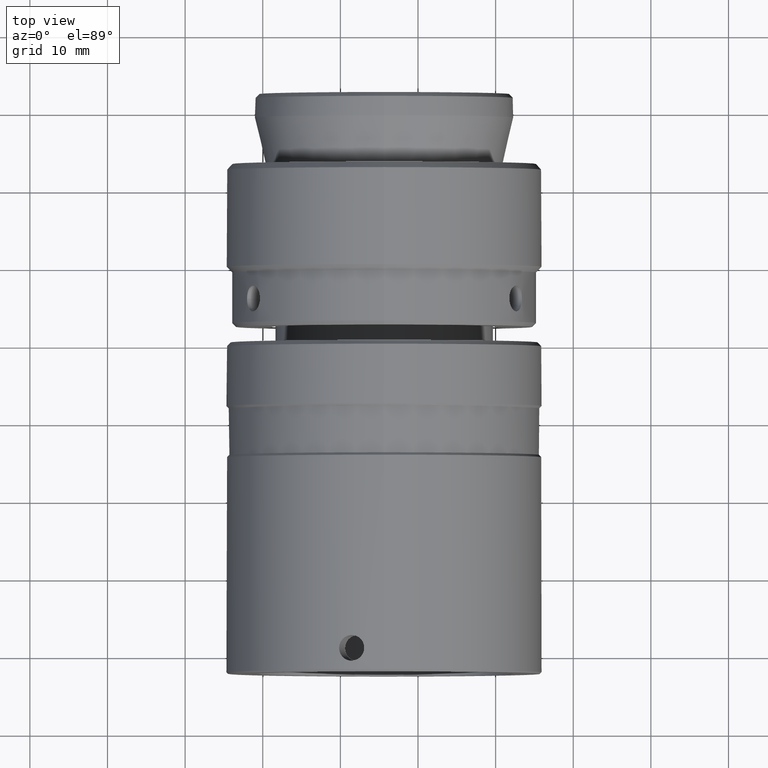
[diagram: clean part render]
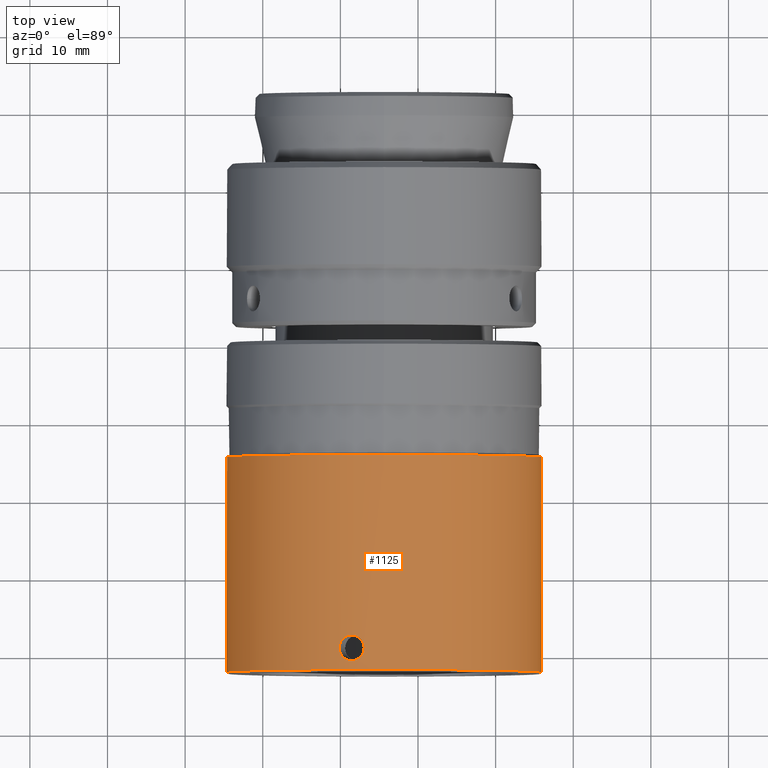
[diagram: same view with one face highlighted and labeled with its STEP entity id]
A machine part, top view. The second image highlights one B-rep face of the part: STEP entity #1125.
In plain terms, the highlighted cylindrical surface (bore or boss wall) has radius 20.32 mm, axis along (0, 1, 0).
Its self-contained STEP definition (entity closure, byte-faithful):
#13 = CARTESIAN_POINT ( 'NONE',  ( 30.17276815262395218, -7.777671463394519868, 30.14250767558814559 ) ) ;
#42 = B_SPLINE_CURVE_WITH_KNOTS ( 'NONE', 3,
 ( #62, #858, #403, #872, #1066, #1519, #50, #1363, #549, #1710, #697, #1531, #1699, #74, #896, #720, #2013, #561, #2026, #574, #415, #1426, #1886, #282, #2063, #1270, #764, #2079, #615, #291, #1905, #1756, #1601, #451, #1279, #431, #633, #933, #1416, #1581, #1101, #2053, #1747, #594, #1764, #1120, #271, #1434, #1736, #303, #2044, #138, #604, #1591 ),
 .UNSPECIFIED., .T., .F.,
 ( 4, 2, 2, 2, 2, 2, 2, 2, 2, 2, 2, 2, 2, 2, 2, 2, 2, 2, 2, 2, 2, 2, 2, 2, 2, 2, 4 ),
 ( 0.000000000000000000, 0.0003224790861775020650, 0.0006449581723550041300, 0.0009674372585325060865, 0.001289916344710008260, 0.001934874517065008487, 0.002579832689420009147, 0.002902311775597509261, 0.003224790861775009808, 0.003547269947952509921, 0.003869749034130010035, 0.004192228120307510582, 0.004514707206485011129, 0.005159665378840003550, 0.005482144465017503229, 0.005804623551195001174, 0.006127102637372499987, 0.006449581723549998799, 0.007094539895904975607, 0.007739498068259950680, 0.008061977154437448626, 0.008384456240614946571, 0.008706935326792444516, 0.009029414412969940726, 0.009351893499147438671, 0.009674372585324936616, 0.01031933075767993077 ),
 .UNSPECIFIED. ) ;
#44 = CIRCLE ( 'NONE', #763, 20.31999726070932866 ) ;
#50 = CARTESIAN_POINT ( 'NONE',  ( 64.46476807828025812, -10.17035141804004716, 35.67512944592265711 ) ) ;
#55 = EDGE_LOOP ( 'NONE', ( #304 ) ) ;
#62 = CARTESIAN_POINT ( 'NONE',  ( 64.38136610844961183, -9.343850822337914863, 35.47317472154978901 ) ) ;
#74 = CARTESIAN_POINT ( 'NONE',  ( 64.98989186124835271, -10.99392541025560455, 37.12225617421751878 ) ) ;
#81 = DIRECTION ( 'NONE',  ( 0.000000000000000000, 0.000000000000000000, 1.000000000000000000 ) ) ;
#90 = CARTESIAN_POINT ( 'NONE',  ( 42.50836092966532220, -8.099359879355038316, 63.40026753977316787 ) ) ;
#98 = CARTESIAN_POINT ( 'NONE',  ( 29.47599142158787089, -9.560111610636901958, 31.00727082283284730 ) ) ;
#104 = CARTESIAN_POINT ( 'NONE',  ( 30.81102393378900217, -10.94116224952707483, 29.42832089389640871 ) ) ;
#112 = CARTESIAN_POINT ( 'NONE',  ( 42.66078331235883780, -10.43453367284628541, 63.42343634198163471 ) ) ;
#121 = CARTESIAN_POINT ( 'NONE',  ( 30.59337664768484544, -10.99392541014729119, 29.66428234022789923 ) ) ;
#122 = DIRECTION ( 'NONE',  ( 0.000000000000000000, 1.000000000000000000, 0.000000000000000000 ) ) ;
#138 = CARTESIAN_POINT ( 'NONE',  ( 64.39817796728793553, -8.911318221872994272, 35.51299586238773998 ) ) ;
#145 = CARTESIAN_POINT ( 'NONE',  ( 40.63160066004505211, -10.77582708932067490, 63.01632193543282767 ) ) ;
#157 = CARTESIAN_POINT ( 'NONE',  ( 29.98210326777132195, -7.911875171770360815, 30.36964996032403974 ) ) ;
#169 = CARTESIAN_POINT ( 'NONE',  ( 29.57172477326774995, -8.611586583363671110, 30.88258179333340436 ) ) ;
#196 = VERTEX_POINT ( 'NONE', #1981 ) ;
#217 = EDGE_CURVE ( 'NONE', #1643, #1643, #589, .T. ) ;
#247 = CARTESIAN_POINT ( 'NONE',  ( 31.67477349074580673, -9.343850822337918416, 28.56087999588127957 ) ) ;
#258 = CARTESIAN_POINT ( 'NONE',  ( 31.55321765669110690, -10.07611746740642111, 28.67676249540956590 ) ) ;
#266 = CARTESIAN_POINT ( 'NONE',  ( 29.60269090440356976, -10.17035356768406906, 30.84261513460028326 ) ) ;
#271 = CARTESIAN_POINT ( 'NONE',  ( 64.59156809029080648, -8.099358757779075546, 35.99485465837855713 ) ) ;
#274 = CARTESIAN_POINT ( 'NONE',  ( 43.06524846346342628, -9.452898621871648643, 63.47906701953659336 ) ) ;
#282 = CARTESIAN_POINT ( 'NONE',  ( 65.35273054240822432, -10.17252157097867560, 38.39694081825582117 ) ) ;
#284 = CARTESIAN_POINT ( 'NONE',  ( 31.38105024726313985, -10.43443816394334611, 28.84416601769826372 ) ) ;
#289 = EDGE_CURVE ( 'NONE', #826, #826, #42, .T. ) ;
#291 = CARTESIAN_POINT ( 'NONE',  ( 65.39246668975619059, -8.916673573009688880, 38.55912422919892180 ) ) ;
#303 = CARTESIAN_POINT ( 'NONE',  ( 64.46525162878693038, -8.515177919218730906, 35.67632052976824752 ) ) ;
#304 = ORIENTED_EDGE ( 'NONE', *, *, #835, .T. ) ;
#306 = CARTESIAN_POINT ( 'NONE',  ( 40.91952815153747025, -10.91003042060479977, 63.08734495255330188 ) ) ;
#314 = CARTESIAN_POINT ( 'NONE',  ( 39.83656667520455841, -9.561939250330230067, 62.79670915248023988 ) ) ;
#319 = CARTESIAN_POINT ( 'NONE',  ( 30.81469453049522045, -7.737405162583292473, 29.42338898115467316 ) ) ;
#323 = CARTESIAN_POINT ( 'NONE',  ( 42.25297451907697877, -10.78565878854725746, 63.35961799748676526 ) ) ;
#330 = CARTESIAN_POINT ( 'NONE',  ( 30.37862570877632962, -7.704474632621606034, 29.90465740734287081 ) ) ;
#384 = ORIENTED_EDGE ( 'NONE', *, *, #217, .T. ) ;
#403 = CARTESIAN_POINT ( 'NONE',  ( 64.38552210586263413, -9.560108218285634507, 35.48307736998662421 ) ) ;
#408 = CARTESIAN_POINT ( 'NONE',  ( 29.52086202835918627, -9.875827327979646242, 30.94855246106299873 ) ) ;
#415 = CARTESIAN_POINT ( 'NONE',  ( 65.26692198138182732, -10.58834176532080917, 38.06519286596088847 ) ) ;
#418 = CARTESIAN_POINT ( 'NONE',  ( 31.51586578665143534, -10.17252372545710237, 28.71271326462845508 ) ) ;
#426 = CARTESIAN_POINT ( 'NONE',  ( 41.22527722167111364, -7.694001199302928029, 63.15877394867361261 ) ) ;
#431 = CARTESIAN_POINT ( 'NONE',  ( 65.24794715799454536, -8.024965903639319720, 37.99323730972241009 ) ) ;
#433 = CARTESIAN_POINT ( 'NONE',  ( 39.84685666706352691, -9.127593426390195219, 62.79978337239806763 ) ) ;
#443 = CARTESIAN_POINT ( 'NONE',  ( 41.54122365649764959, -7.693776234420239390, 63.22556554508834381 ) ) ;
#451 = CARTESIAN_POINT ( 'NONE',  ( 65.32361984110319497, -8.338035088271913864, 38.28186210775024989 ) ) ;
#455 = CARTESIAN_POINT ( 'NONE',  ( 41.86201609123797596, -10.95029660808248195, 63.28961959561253536 ) ) ;
#456 = FACE_BOUND ( 'NONE', #647, .T. ) ;
#465 = CARTESIAN_POINT ( 'NONE',  ( 40.22876118837648818, -10.43443816394334789, 62.90943793210966817 ) ) ;
#474 = CARTESIAN_POINT ( 'NONE',  ( 45.63870267272136516, 57.35366667322863066, 43.32268782812209196 ) ) ;
#509 = ORIENTED_EDGE ( 'NONE', *, *, #1375, .T. ) ;
#549 = CARTESIAN_POINT ( 'NONE',  ( 64.53542070400010289, -10.43453215128681855, 35.85126613041059329 ) ) ;
#561 = CARTESIAN_POINT ( 'NONE',  ( 65.17105645156759408, -10.82744587942392300, 37.71916792620475434 ) ) ;
#574 = CARTESIAN_POINT ( 'NONE',  ( 65.24521252397825322, -10.65648047791265896, 37.98461079755573166 ) ) ;
#579 = CARTESIAN_POINT ( 'NONE',  ( 41.95729909422033899, -7.777671463394520757, 63.30667009206011642 ) ) ;
#587 = CARTESIAN_POINT ( 'NONE',  ( 43.01287827206562042, -9.771028071666162163, 63.47232249524709147 ) ) ;
#589 = CIRCLE ( 'NONE', #1673, 20.31999726070932866 ) ;
#594 = CARTESIAN_POINT ( 'NONE',  ( 64.71818054825868671, -7.860255287726602980, 36.33084948584013318 ) ) ;
#597 = CARTESIAN_POINT ( 'NONE',  ( 43.06524921052407251, -9.125766581550822210, 63.47906711491714304 ) ) ;
#604 = CARTESIAN_POINT ( 'NONE',  ( 64.38136610844959762, -9.125762394345608541, 35.47317472154978901 ) ) ;
#607 = CARTESIAN_POINT ( 'NONE',  ( 30.23517581718590108, -10.95029660808248195, 30.06851542268035615 ) ) ;
#615 = CARTESIAN_POINT ( 'NONE',  ( 65.40228510236488546, -9.127590034038952638, 38.60002538534976679 ) ) ;
#625 = ORIENTED_EDGE ( 'NONE', *, *, #289, .T. ) ;
#633 = CARTESIAN_POINT ( 'NONE',  ( 65.19921985302299561, -7.902042856128588255, 37.81561116427388924 ) ) ;
#641 = CARTESIAN_POINT ( 'NONE',  ( 31.63645416866066995, -8.916676588444049756, 28.59720760421632235 ) ) ;
#644 = CARTESIAN_POINT ( 'NONE',  ( 41.64879308972721361, -10.99370044558953552, 63.24828087273041888 ) ) ;
#647 = EDGE_LOOP ( 'NONE', ( #625 ) ) ;
#660 = CARTESIAN_POINT ( 'NONE',  ( 29.49557287509087189, -8.911321214948518588, 30.98135231593321492 ) ) ;
#697 = CARTESIAN_POINT ( 'NONE',  ( 64.68405690766397242, -10.78565819999414899, 36.23634830029457277 ) ) ;
#720 = CARTESIAN_POINT ( 'NONE',  ( 65.08541695260177562, -10.94116209831186026, 37.42872540584809116 ) ) ;
#738 = CARTESIAN_POINT ( 'NONE',  ( 42.66098135423737858, -8.253265031009794583, 63.42346946107031869 ) ) ;
#750 = CARTESIAN_POINT ( 'NONE',  ( 31.01973450695804502, -10.82744635694923829, 29.20893392718843273 ) ) ;
#757 = CARTESIAN_POINT ( 'NONE',  ( 31.42995525411115665, -10.35109510260713428, 28.79625071330946184 ) ) ;
#763 = AXIS2_PLACEMENT_3D ( 'NONE', #1656, #969, #1815 ) ;
#764 = CARTESIAN_POINT ( 'NONE',  ( 65.40476796864612652, -9.561935063125028833, 38.61047482439694534 ) ) ;
#768 = CARTESIAN_POINT ( 'NONE',  ( 40.62771130460764368, -7.902043444681683404, 63.01613067965991632 ) ) ;
#779 = CARTESIAN_POINT ( 'NONE',  ( 40.44951874448929630, -8.024966822196292426, 62.96951663808596322 ) ) ;
#780 = DIRECTION ( 'NONE',  ( 0.000000000000000000, 0.000000000000000000, 1.000000000000000000 ) ) ;
#794 = CARTESIAN_POINT ( 'NONE',  ( 39.87795605640005192, -9.776383422802837231, 62.80917033137679795 ) ) ;
#805 = CARTESIAN_POINT ( 'NONE',  ( 30.45104446952529642, -7.693776234420237614, 29.82272805011548300 ) ) ;
#826 = VERTEX_POINT ( 'NONE', #977 ) ;
#835 = EDGE_CURVE ( 'NONE', #1158, #1158, #1041, .T. ) ;
#854 = DIRECTION ( 'NONE',  ( -0.000000000000000000, -1.000000000000000000, -0.000000000000000000 ) ) ;
#858 = CARTESIAN_POINT ( 'NONE',  ( 64.38136610844961183, -9.452895036334069800, 35.47317472154978901 ) ) ;
#872 = CARTESIAN_POINT ( 'NONE',  ( 64.40171005715743036, -9.771025056231779971, 35.52190037519736876 ) ) ;
#894 = FACE_OUTER_BOUND ( 'NONE', #1317, .T. ) ;
#895 = EDGE_CURVE ( 'NONE', #196, #196, #1589, .T. ) ;
#896 = CARTESIAN_POINT ( 'NONE',  ( 65.02296828952690078, -10.98322701205423080, 37.22648115383586287 ) ) ;
#901 = CARTESIAN_POINT ( 'NONE',  ( 41.85614457122620991, -7.746539546363984563, 63.28780098901594187 ) ) ;
#913 = CARTESIAN_POINT ( 'NONE',  ( 29.50151937434344518, -9.771028071666167492, 30.97383985771459081 ) ) ;
#920 = CARTESIAN_POINT ( 'NONE',  ( 29.67666280111491162, -10.34966655640394073, 30.74814326354794147 ) ) ;
#926 = CARTESIAN_POINT ( 'NONE',  ( 42.84737777263937630, -8.515180073697175445, 63.45014131221137177 ) ) ;
#933 = CARTESIAN_POINT ( 'NONE',  ( 65.08785245791999330, -7.737405036593361096, 37.43436902091710294 ) ) ;
#956 = CARTESIAN_POINT ( 'NONE',  ( 40.04751199512649151, -10.17252372545710948, 62.85841062670940715 ) ) ;
#957 = FACE_BOUND ( 'NONE', #55, .T. ) ;
#968 = CARTESIAN_POINT ( 'NONE',  ( 39.83656667520456551, -9.343850822337916640, 62.79670915248021856 ) ) ;
#969 = DIRECTION ( 'NONE',  ( 0.000000000000000000, 1.000000000000000000, 0.000000000000000000 ) ) ;
#972 = CARTESIAN_POINT ( 'NONE',  ( 30.23968653670392825, -7.746539546363983675, 30.06433984048964447 ) ) ;
#977 = CARTESIAN_POINT ( 'NONE',  ( 64.38136610844961183, -9.343850822337916640, 35.47317472154978901 ) ) ;
#982 = CARTESIAN_POINT ( 'NONE',  ( 29.71977580190662138, -8.253265031009794583, 30.69351470445026919 ) ) ;
#991 = EDGE_LOOP ( 'NONE', ( #509 ) ) ;
#994 = CARTESIAN_POINT ( 'NONE',  ( 31.67477349074579607, -9.234806608341763479, 28.56087999588127602 ) ) ;
#1041 = B_SPLINE_CURVE_WITH_KNOTS ( 'NONE', 3,
 ( #1327, #994, #1969, #641, #1164, #1315, #1930, #1774, #1303, #1609, #1469, #319, #1140, #805, #330, #972, #13, #1616, #157, #1956, #1456, #982, #1943, #1626, #169, #660, #1958, #1070, #98, #913, #408, #1556, #266, #920, #1547, #1418, #1881, #607, #1564, #121, #1093, #104, #1059, #750, #1704, #1430, #1402, #284, #757, #418, #258, #1738, #1084, #247 ),
 .UNSPECIFIED., .T., .F.,
 ( 4, 2, 2, 2, 2, 2, 2, 2, 2, 2, 2, 2, 2, 2, 2, 2, 2, 2, 2, 2, 2, 2, 2, 2, 2, 2, 4 ),
 ( 0.000000000000000000, 0.0003224790861774997882, 0.0006449581723549995763, 0.0009674372585324993645, 0.001289916344709999153, 0.001934874517065009354, 0.002579832689420019122, 0.002902311775597516633, 0.003224790861775014145, 0.003547269947952511656, 0.003869749034130009601, 0.004192228120307506245, 0.004514707206485004190, 0.005159665378839996611, 0.005482144465017490219, 0.005804623551194985562, 0.006127102637372479170, 0.006449581723549973646, 0.007094539895904962597, 0.007739498068259951548, 0.008061977154437450360, 0.008384456240614948305, 0.008706935326792447985, 0.009029414412969945930, 0.009351893499147445610, 0.009674372585324943555, 0.01031933075767994118 ),
 .UNSPECIFIED. ) ;
#1059 = CARTESIAN_POINT ( 'NONE',  ( 30.88159476646685420, -10.91003042060480333, 29.35343424566890747 ) ) ;
#1066 = CARTESIAN_POINT ( 'NONE',  ( 64.41393819812120114, -9.875824492122832865, 35.55129515520957995 ) ) ;
#1070 = CARTESIAN_POINT ( 'NONE',  ( 29.46949334927339237, -9.452898621871652196, 31.01582151172139135 ) ) ;
#1078 = CARTESIAN_POINT ( 'NONE',  ( 42.15407433871260423, -7.860255765251924487, 63.34191970167344010 ) ) ;
#1084 = CARTESIAN_POINT ( 'NONE',  ( 31.67477349074582804, -9.561939250330228290, 28.56087999588128667 ) ) ;
#1093 = CARTESIAN_POINT ( 'NONE',  ( 30.66709980536963798, -10.98322704340561451, 29.58352493986006593 ) ) ;
#1101 = CARTESIAN_POINT ( 'NONE',  ( 64.88909646793024422, -7.704474601270227652, 36.81608902250375337 ) ) ;
#1120 = CARTESIAN_POINT ( 'NONE',  ( 64.62155074846049274, -8.031220229257902687, 36.07273790750978293 ) ) ;
#1125 = ADVANCED_FACE ( 'NONE', ( #894, #1575, #456, #957, #1541 ), #2073, .T. ) ;
#1140 = CARTESIAN_POINT ( 'NONE',  ( 30.66686090619299776, -7.694001199302921812, 29.58250620952794208 ) ) ;
#1158 = VERTEX_POINT ( 'NONE', #1621 ) ;
#1164 = CARTESIAN_POINT ( 'NONE',  ( 31.61337817505981107, -8.811877152552998638, 28.61914111836089347 ) ) ;
#1221 = CARTESIAN_POINT ( 'NONE',  ( 40.22895306383840364, -8.253169493389021838, 62.90948704871652808 ) ) ;
#1235 = CARTESIAN_POINT ( 'NONE',  ( 42.89874377054918142, -8.611586583363678216, 63.45715186848641309 ) ) ;
#1244 = CARTESIAN_POINT ( 'NONE',  ( 42.98130741716189362, -9.875827327979646242, 63.46821496381867433 ) ) ;
#1254 = CARTESIAN_POINT ( 'NONE',  ( 42.89899020660111262, -10.07560711027544720, 63.45718530688579051 ) ) ;
#1264 = CARTESIAN_POINT ( 'NONE',  ( 39.91771994516794564, -8.811877152552998638, 62.82074849429785957 ) ) ;
#1270 = CARTESIAN_POINT ( 'NONE',  ( 65.39486505580423170, -9.776380429727325350, 38.56840031253981493 ) ) ;
#1279 = CARTESIAN_POINT ( 'NONE',  ( 65.30624284104361266, -8.253167971829570959, 38.21426749873656092 ) ) ;
#1285 = AXIS2_PLACEMENT_3D ( 'NONE', #474, #122, #780 ) ;
#1303 = CARTESIAN_POINT ( 'NONE',  ( 31.38091177330289838, -8.253169493389011180, 28.84430762841922302 ) ) ;
#1315 = CARTESIAN_POINT ( 'NONE',  ( 31.55339869281027632, -8.612096900926410115, 28.67658852133272873 ) ) ;
#1317 = EDGE_LOOP ( 'NONE', ( #384 ) ) ;
#1327 = CARTESIAN_POINT ( 'NONE',  ( 31.67477349074580673, -9.343850822337918416, 28.56087999588127957 ) ) ;
#1363 = CARTESIAN_POINT ( 'NONE',  ( 64.50959714192018168, -10.34966481486925183, 35.78642683238352618 ) ) ;
#1375 = EDGE_CURVE ( 'NONE', #1935, #1935, #44, .T. ) ;
#1392 = CARTESIAN_POINT ( 'NONE',  ( 40.16172591912214784, -8.338036829806583228, 62.89073866370772947 ) ) ;
#1402 = CARTESIAN_POINT ( 'NONE',  ( 31.27146790054467829, -10.58834288689676484, 28.95289967723939739 ) ) ;
#1411 = CARTESIAN_POINT ( 'NONE',  ( 40.04627606656374894, -8.517350226635786115, 62.85805709819914000 ) ) ;
#1416 = CARTESIAN_POINT ( 'NONE',  ( 65.02396979372902308, -7.694001199086318188, 37.22678303006362199 ) ) ;
#1418 = CARTESIAN_POINT ( 'NONE',  ( 29.86264585663612081, -10.66273574103653132, 30.51481745686452740 ) ) ;
#1426 = CARTESIAN_POINT ( 'NONE',  ( 65.30629692918279261, -10.43443661366605468, 38.21446086867445047 ) ) ;
#1430 = CARTESIAN_POINT ( 'NONE',  ( 31.21253655704576246, -10.65648141541793592, 29.01199161441844865 ) ) ;
#1434 = CARTESIAN_POINT ( 'NONE',  ( 64.53535136872160649, -8.253263480732490720, 35.85108060075498315 ) ) ;
#1438 = CARTESIAN_POINT ( 'NONE',  ( 40.72531733463284809, -10.82744635694924007, 63.03996258725599944 ) ) ;
#1446 = CARTESIAN_POINT ( 'NONE',  ( 41.01966730764568325, -10.94116224952707661, 63.11101776230480453 ) ) ;
#1453 = CARTESIAN_POINT ( 'NONE',  ( 41.22604001843004085, -10.98322704340561273, 63.15805769075169707 ) ) ;
#1456 = CARTESIAN_POINT ( 'NONE',  ( 29.81617946745257086, -8.099359879355034764, 30.57294250028309435 ) ) ;
#1458 = EDGE_LOOP ( 'NONE', ( #1781 ) ) ;
#1469 = CARTESIAN_POINT ( 'NONE',  ( 31.08917655936946645, -7.902043444681681628, 29.13632057942207965 ) ) ;
#1519 = CARTESIAN_POINT ( 'NONE',  ( 64.44554476629301121, -10.07560474374942139, 35.62809858773398730 ) ) ;
#1531 = CARTESIAN_POINT ( 'NONE',  ( 64.81891590684561777, -10.95029648209254347, 36.60992787921713898 ) ) ;
#1541 = FACE_BOUND ( 'NONE', #1458, .T. ) ;
#1547 = CARTESIAN_POINT ( 'NONE',  ( 29.71990350481804199, -10.43453367284628719, 30.69335975469679312 ) ) ;
#1556 = CARTESIAN_POINT ( 'NONE',  ( 29.57157259673845573, -10.07560711027544897, 30.88277849401511332 ) ) ;
#1564 = CARTESIAN_POINT ( 'NONE',  ( 30.37758770211718229, -10.99370044558953019, 29.90452824814192567 ) ) ;
#1572 = CARTESIAN_POINT ( 'NONE',  ( 42.72984757458395677, -10.34966655640393540, 63.43349213544048837 ) ) ;
#1575 = FACE_OUTER_BOUND ( 'NONE', #991, .T. ) ;
#1581 = CARTESIAN_POINT ( 'NONE',  ( 64.92383994042808126, -7.693776234528549196, 36.91977003721704165 ) ) ;
#1583 = CARTESIAN_POINT ( 'NONE',  ( 39.83656667520456551, -9.343850822337916640, 62.79670915248021856 ) ) ;
#1589 = B_SPLINE_CURVE_WITH_KNOTS ( 'NONE', 3,
 ( #1583, #1728, #433, #2065, #1264, #1721, #1411, #1392, #1221, #779, #768, #2031, #426, #443, #1898, #901, #579, #1078, #1859, #2039, #90, #738, #1871, #926, #1235, #2048, #597, #274, #1713, #587, #1244, #1254, #1888, #1572, #112, #2055, #323, #455, #644, #1767, #1453, #1446, #306, #1438, #145, #2092, #2083, #465, #1604, #956, #1909, #794, #314, #968 ),
 .UNSPECIFIED., .T., .F.,
 ( 4, 2, 2, 2, 2, 2, 2, 2, 2, 2, 2, 2, 2, 2, 2, 2, 2, 2, 2, 2, 2, 2, 2, 2, 2, 2, 4 ),
 ( 0.000000000000000000, 0.0003224790861775029324, 0.0006449581723550058647, 0.0009674372585325087971, 0.001289916344710011729, 0.001934874517064999380, 0.002579832689419987030, 0.002902311775597480638, 0.003224790861774974246, 0.003547269947952469589, 0.003869749034129964065, 0.004192228120307459407, 0.004514707206484953883, 0.005159665378839935895, 0.005482144465017423432, 0.005804623551194911836, 0.006127102637372399373, 0.006449581723549887777, 0.007094539895904883667, 0.007739498068259879557, 0.008061977154437386175, 0.008384456240614894529, 0.008706935326792401147, 0.009029414412969909501, 0.009351893499147417854, 0.009674372585324924473, 0.01031933075767994291 ),
 .UNSPECIFIED. ) ;
#1591 = CARTESIAN_POINT ( 'NONE',  ( 64.38136610844961183, -9.343850822337914863, 35.47317472154978901 ) ) ;
#1601 = CARTESIAN_POINT ( 'NONE',  ( 65.35304173210883505, -8.517348076991781980, 38.39818548567942003 ) ) ;
#1604 = CARTESIAN_POINT ( 'NONE',  ( 40.16281281412171467, -10.35109510260713961, 62.89104260600149132 ) ) ;
#1609 = CARTESIAN_POINT ( 'NONE',  ( 31.21864178360476316, -8.024966822196290650, 29.00530831638116780 ) ) ;
#1616 = CARTESIAN_POINT ( 'NONE',  ( 30.04385347297920106, -7.860255765251919158, 30.29529523134771907 ) ) ;
#1621 = CARTESIAN_POINT ( 'NONE',  ( 31.67477349074581383, -9.343850822337916640, 28.56087999588126891 ) ) ;
#1626 = CARTESIAN_POINT ( 'NONE',  ( 29.60347909205146877, -8.515180073697170116, 30.84160281239028834 ) ) ;
#1643 = VERTEX_POINT ( 'NONE', #1973 ) ;
#1656 = CARTESIAN_POINT ( 'NONE',  ( 45.63870267272136516, -12.14385589236122875, 43.32268782812209196 ) ) ;
#1673 = AXIS2_PLACEMENT_3D ( 'NONE', #1817, #854, #81 ) ;
#1699 = CARTESIAN_POINT ( 'NONE',  ( 64.88972712971529688, -10.99370044537292657, 36.81525406740371409 ) ) ;
#1704 = CARTESIAN_POINT ( 'NONE',  ( 31.08706624929283890, -10.77582708932067490, 29.13959323214879049 ) ) ;
#1710 = CARTESIAN_POINT ( 'NONE',  ( 64.61867173935785047, -10.66273482247954796, 36.06415585818700720 ) ) ;
#1713 = CARTESIAN_POINT ( 'NONE',  ( 43.05459431350885069, -9.560111610636903734, 63.47771486828091270 ) ) ;
#1721 = CARTESIAN_POINT ( 'NONE',  ( 39.99746059664776965, -8.612096900926413667, 62.84396854814585964 ) ) ;
#1728 = CARTESIAN_POINT ( 'NONE',  ( 39.83656667520457262, -9.234806608341761702, 62.79670915248020435 ) ) ;
#1736 = CARTESIAN_POINT ( 'NONE',  ( 64.51001546741596826, -8.336606542068707881, 35.78747503343177527 ) ) ;
#1738 = CARTESIAN_POINT ( 'NONE',  ( 31.64328710266254419, -9.776383422802837231, 28.59049366199518261 ) ) ;
#1747 = CARTESIAN_POINT ( 'NONE',  ( 64.78604101857790454, -7.777671224071044165, 36.51888641442594974 ) ) ;
#1756 = CARTESIAN_POINT ( 'NONE',  ( 65.36524844484939933, -8.612094534400398516, 38.44750526543861469 ) ) ;
#1764 = CARTESIAN_POINT ( 'NONE',  ( 64.68466260393365985, -7.911874555355170813, 36.24019496073167090 ) ) ;
#1767 = CARTESIAN_POINT ( 'NONE',  ( 41.33283955753456240, -10.99392541014729474, 63.18152511796998283 ) ) ;
#1774 = CARTESIAN_POINT ( 'NONE',  ( 31.43076192335858465, -8.338036829806585004, 28.79546140577546964 ) ) ;
#1781 = ORIENTED_EDGE ( 'NONE', *, *, #895, .T. ) ;
#1790 = CARTESIAN_POINT ( 'NONE',  ( 45.63870267272136516, -12.14385589236122875, 63.64268508883142061 ) ) ;
#1815 = DIRECTION ( 'NONE',  ( 0.000000000000000000, 0.000000000000000000, 1.000000000000000000 ) ) ;
#1817 = CARTESIAN_POINT ( 'NONE',  ( 45.63870267272136516, 15.55661705603528233, 43.32268782812209196 ) ) ;
#1859 = CARTESIAN_POINT ( 'NONE',  ( 42.24934252550153957, -7.911875171770353710, 63.35821958358418726 ) ) ;
#1871 = CARTESIAN_POINT ( 'NONE',  ( 42.72873330223429633, -8.336608262684903181, 63.43333069986598360 ) ) ;
#1881 = CARTESIAN_POINT ( 'NONE',  ( 29.97907620901899861, -10.78565878854725923, 30.37209615207546420 ) ) ;
#1886 = CARTESIAN_POINT ( 'NONE',  ( 65.32334028169336193, -10.35109338199095141, 38.28077146076321924 ) ) ;
#1888 = CARTESIAN_POINT ( 'NONE',  ( 42.84864856321401305, -10.17035356768407084, 63.45031774163246752 ) ) ;
#1898 = CARTESIAN_POINT ( 'NONE',  ( 41.64838594154677764, -7.704474632621607810, 63.24731735299386770 ) ) ;
#1905 = CARTESIAN_POINT ( 'NONE',  ( 65.38500966720067709, -8.811874316696203024, 38.52817292052878884 ) ) ;
#1909 = CARTESIAN_POINT ( 'NONE',  ( 39.99770178067748816, -10.07611746740642111, 62.84403834298568370 ) ) ;
#1930 = CARTESIAN_POINT ( 'NONE',  ( 31.51678991560365262, -8.517350226635789667, 28.71181968335101686 ) ) ;
#1935 = VERTEX_POINT ( 'NONE', #1790 ) ;
#1943 = CARTESIAN_POINT ( 'NONE',  ( 29.67735974459831638, -8.336608262684896076, 30.74725899317364508 ) ) ;
#1956 = CARTESIAN_POINT ( 'NONE',  ( 29.86863704413266873, -8.031221166763188535, 30.50803508207790671 ) ) ;
#1958 = CARTESIAN_POINT ( 'NONE',  ( 29.46949289314108711, -9.125766581550827539, 31.01582211100460640 ) ) ;
#1969 = CARTESIAN_POINT ( 'NONE',  ( 31.66696614227065254, -9.127593426390196996, 28.56825428027692837 ) ) ;
#1973 = CARTESIAN_POINT ( 'NONE',  ( 45.63870267272136516, 15.55661705603528233, 63.64268508883142061 ) ) ;
#1981 = CARTESIAN_POINT ( 'NONE',  ( 39.83656667520458683, -9.343850822337916640, 62.79670915248021856 ) ) ;
#2013 = CARTESIAN_POINT ( 'NONE',  ( 65.11498531187514516, -10.91003018128131785, 37.52728499544622309 ) ) ;
#2026 = CARTESIAN_POINT ( 'NONE',  ( 65.19744140431133417, -10.77582647290547868, 37.81214936431509699 ) ) ;
#2031 = CARTESIAN_POINT ( 'NONE',  ( 41.01356084756898213, -7.737405162583292473, 63.11030488868103561 ) ) ;
#2039 = CARTESIAN_POINT ( 'NONE',  ( 42.42592066826552610, -8.031221166763186758, 63.38729165484982531 ) ) ;
#2044 = CARTESIAN_POINT ( 'NONE',  ( 64.44563992953122522, -8.611584177269413942, 35.62833093448766419 ) ) ;
#2048 = CARTESIAN_POINT ( 'NONE',  ( 43.02235750135408665, -8.911321214948520364, 63.47371608555407363 ) ) ;
#2053 = CARTESIAN_POINT ( 'NONE',  ( 64.82027710882961458, -7.746539395148764662, 36.61592322513131137 ) ) ;
#2055 = CARTESIAN_POINT ( 'NONE',  ( 42.43478997087702709, -10.66273574103652955, 63.38908898802735337 ) ) ;
#2063 = CARTESIAN_POINT ( 'NONE',  ( 65.36518886883784774, -10.07611506131217460, 38.44726381243469149 ) ) ;
#2065 = CARTESIAN_POINT ( 'NONE',  ( 39.88718696792404472, -8.916676588444049756, 62.81173085469422546 ) ) ;
#2073 = CYLINDRICAL_SURFACE ( 'NONE', #1285, 20.31999726070932866 ) ;
#2079 = CARTESIAN_POINT ( 'NONE',  ( 65.40476779399617158, -9.234803022804197070, 38.61047409180256551 ) ) ;
#2083 = CARTESIAN_POINT ( 'NONE',  ( 40.37771847314476048, -10.58834288689676306, 62.94997219840362135 ) ) ;
#2092 = CARTESIAN_POINT ( 'NONE',  ( 40.45835926365011659, -10.65648141541793414, 62.97146227036328980 ) ) ;